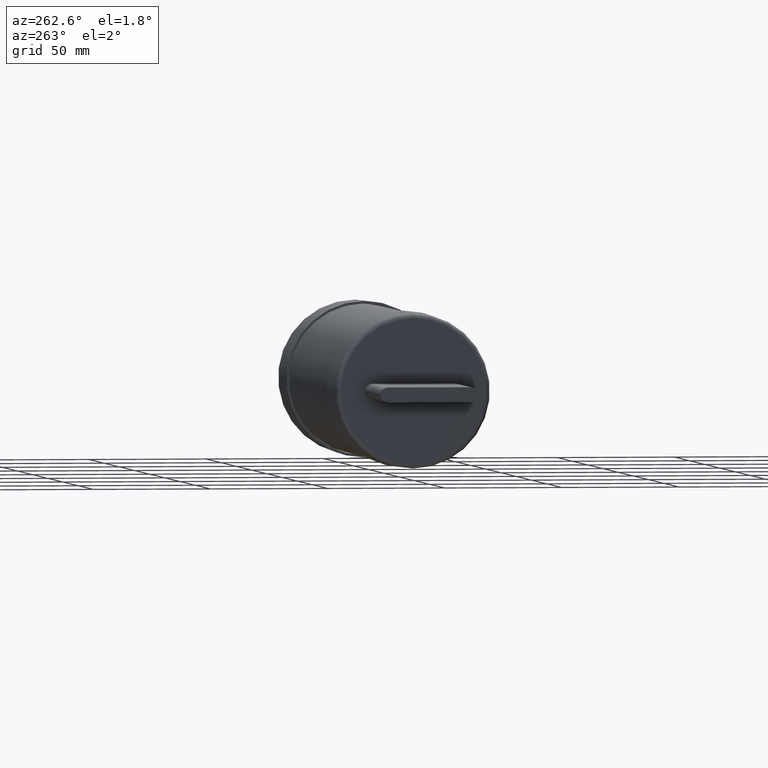
[diagram: clean part render]
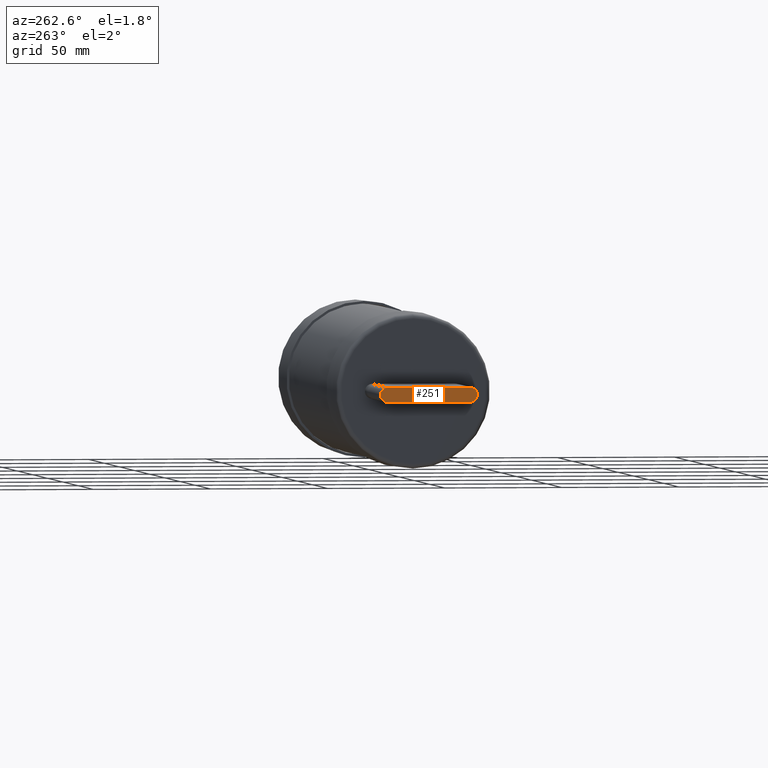
[diagram: same view with one face highlighted and labeled with its STEP entity id]
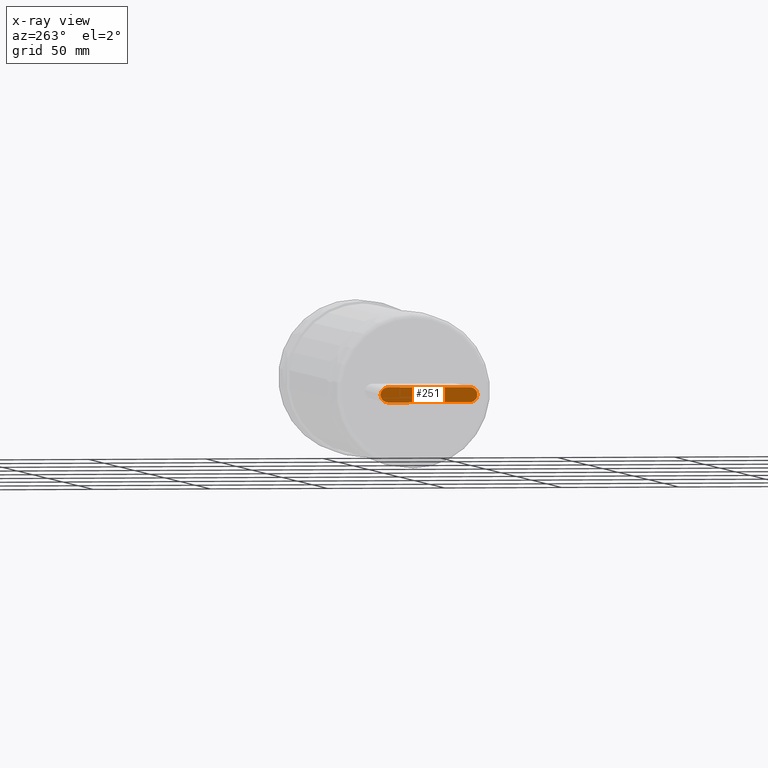
[diagram: x-ray of the same camera — body ghosted, the highlighted face saturated]
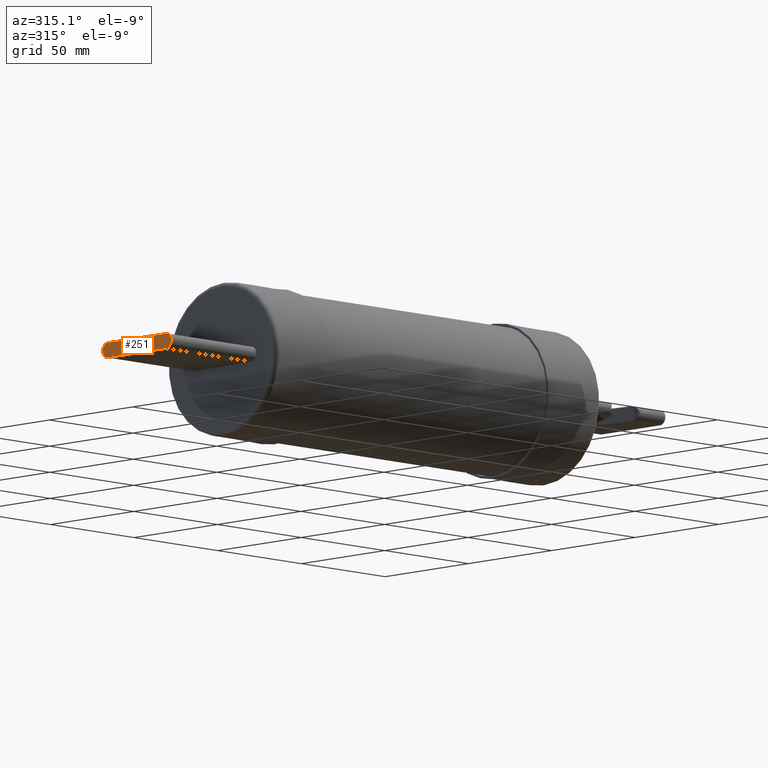
[diagram: same view with one face highlighted and labeled with its STEP entity id]
A machine part, auxiliary view. The second image highlights one B-rep face of the part: STEP entity #251.
The next image is the same camera in x-ray: the body ghosted, the highlighted face saturated — about 0% of this face is hidden behind the body in this view.
A second angle (auxiliary view) of the same face is appended — the face is thin or edge-on in the first view.
In plain terms, the highlighted planar face has unit normal (1, 0.0002, -0).
Its self-contained STEP definition (entity closure, byte-faithful):
#46 = CIRCLE ( 'NONE', #3203, 0.1250000000000000000 ) ;
#251 = ADVANCED_FACE ( 'NONE', ( #3177 ), #3131, .F. ) ;
#289 = DIRECTION ( 'NONE',  ( 0.0001632919660352061000, -0.9999999866678668200, -1.201107293654601400E-016 ) ) ;
#334 = EDGE_LOOP ( 'NONE', ( #1844, #4410, #1917, #1356 ) ) ;
#547 = DIRECTION ( 'NONE',  ( -0.9999999866678668200, -0.0001632919660352061000, 2.389582637028078700E-017 ) ) ;
#581 = DIRECTION ( 'NONE',  ( -0.9999999866678668200, -0.0001632919660352061000, 2.389582637028078700E-017 ) ) ;
#595 = EDGE_CURVE ( 'NONE', #1148, #3218, #1161, .T. ) ;
#646 = DIRECTION ( 'NONE',  ( 0.9999999866678668200, 0.0001632919660352061000, -2.389582637028079000E-017 ) ) ;
#723 = DIRECTION ( 'NONE',  ( -0.0001632919660352061000, 0.9999999866678668200, 1.201107293654601400E-016 ) ) ;
#785 = EDGE_CURVE ( 'NONE', #1791, #3218, #46, .T. ) ;
#1148 = VERTEX_POINT ( 'NONE', #2731 ) ;
#1161 = LINE ( 'NONE', #3579, #3912 ) ;
#1305 = CARTESIAN_POINT ( 'NONE',  ( -5.811887618464001400, -0.6884490437340894400, 0.1250000000000001100 ) ) ;
#1356 = ORIENTED_EDGE ( 'NONE', *, *, #785, .T. ) ;
#1690 = CARTESIAN_POINT ( 'NONE',  ( -5.812132556413054400, 0.8115509362677111300, -0.1249999999999996900 ) ) ;
#1791 = VERTEX_POINT ( 'NONE', #4127 ) ;
#1844 = ORIENTED_EDGE ( 'NONE', *, *, #595, .F. ) ;
#1917 = ORIENTED_EDGE ( 'NONE', *, *, #2830, .T. ) ;
#1967 = AXIS2_PLACEMENT_3D ( 'NONE', #1690, #646, #289 ) ;
#1968 = CIRCLE ( 'NONE', #4022, 0.1250000000000000600 ) ;
#2068 = VERTEX_POINT ( 'NONE', #1305 ) ;
#2257 = CARTESIAN_POINT ( 'NONE',  ( -5.812112144917299400, 0.6865509379342281700, -0.1249999999999997100 ) ) ;
#2459 = CARTESIAN_POINT ( 'NONE',  ( -5.812132556413054400, 0.8115509362677111300, 0.1250000000000003100 ) ) ;
#2600 = LINE ( 'NONE', #2459, #4269 ) ;
#2616 = DIRECTION ( 'NONE',  ( 0.0001632919660380538100, -0.9999999866678668200, -1.201107293654602200E-016 ) ) ;
#2658 = CARTESIAN_POINT ( 'NONE',  ( -5.811887618464001400, -0.6884490437340891100, 1.201117998709170500E-016 ) ) ;
#2731 = CARTESIAN_POINT ( 'NONE',  ( -5.811887618464001400, -0.6884490437340894400, -0.1249999999999998800 ) ) ;
#2830 = EDGE_CURVE ( 'NONE', #2068, #1791, #2600, .T. ) ;
#2995 = CARTESIAN_POINT ( 'NONE',  ( -5.812112144917299400, 0.6865509379342281700, 2.852640527484248100E-016 ) ) ;
#3038 = DIRECTION ( 'NONE',  ( 0.0001632919660380537300, -0.9999999866678669400, -1.201107293654601700E-016 ) ) ;
#3131 = PLANE ( 'NONE',  #1967 ) ;
#3177 = FACE_OUTER_BOUND ( 'NONE', #334, .T. ) ;
#3203 = AXIS2_PLACEMENT_3D ( 'NONE', #2995, #547, #2616 ) ;
#3218 = VERTEX_POINT ( 'NONE', #2257 ) ;
#3572 = EDGE_CURVE ( 'NONE', #1148, #2068, #1968, .T. ) ;
#3579 = CARTESIAN_POINT ( 'NONE',  ( -5.812132556413054400, 0.8115509362677111300, -0.1249999999999996900 ) ) ;
#3669 = DIRECTION ( 'NONE',  ( -0.0001632919660352061000, 0.9999999866678668200, 1.201107293654601400E-016 ) ) ;
#3912 = VECTOR ( 'NONE', #3669, 39.37007874015748100 ) ;
#4022 = AXIS2_PLACEMENT_3D ( 'NONE', #2658, #581, #3038 ) ;
#4127 = CARTESIAN_POINT ( 'NONE',  ( -5.812112144917299400, 0.6865509379342281700, 0.1250000000000002800 ) ) ;
#4269 = VECTOR ( 'NONE', #723, 39.37007874015748100 ) ;
#4410 = ORIENTED_EDGE ( 'NONE', *, *, #3572, .T. ) ;